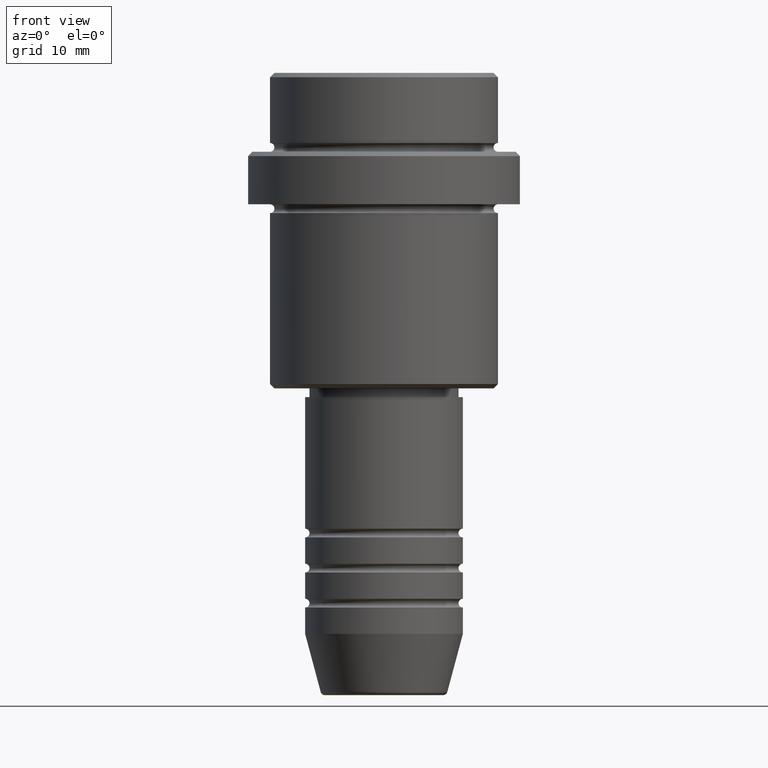
[diagram: clean part render]
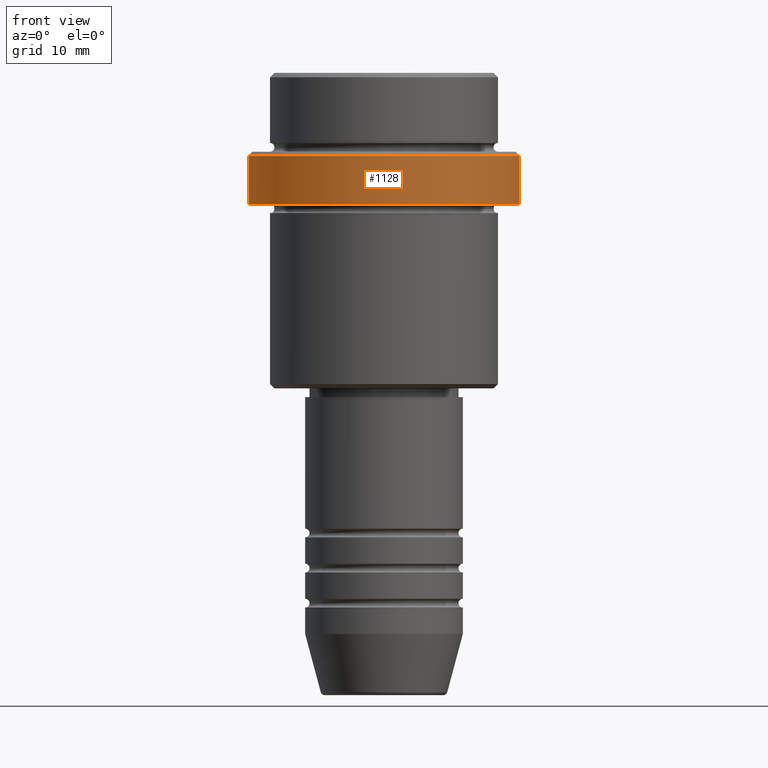
[diagram: same view with one face highlighted and labeled with its STEP entity id]
A machine part, front view. The second image highlights one B-rep face of the part: STEP entity #1128.
In plain terms, the highlighted cylindrical surface (partial cylindrical patch) has radius 15.5 mm, axis along (-0, -0, 1).
Its self-contained STEP definition (entity closure, byte-faithful):
#4 = CARTESIAN_POINT ( 'NONE',  ( 0.000000000000000000, 0.000000000000000000, -9.499999999999991118 ) ) ;
#10 = VERTEX_POINT ( 'NONE', #556 ) ;
#131 = DIRECTION ( 'NONE',  ( -0.000000000000000000, -0.000000000000000000, 1.000000000000000000 ) ) ;
#156 = CARTESIAN_POINT ( 'NONE',  ( 0.000000000000000000, 0.000000000000000000, 0.000000000000000000 ) ) ;
#195 = VECTOR ( 'NONE', #131, 1000.000000000000000 ) ;
#215 = VERTEX_POINT ( 'NONE', #1056 ) ;
#246 = CARTESIAN_POINT ( 'NONE',  ( -15.50000000000000000, 1.898202538678397557E-15, 0.000000000000000000 ) ) ;
#268 = ORIENTED_EDGE ( 'NONE', *, *, #835, .F. ) ;
#302 = LINE ( 'NONE', #594, #857 ) ;
#342 = DIRECTION ( 'NONE',  ( 0.000000000000000000, 0.000000000000000000, -1.000000000000000000 ) ) ;
#352 = VERTEX_POINT ( 'NONE', #619 ) ;
#446 = DIRECTION ( 'NONE',  ( 1.000000000000000000, 0.000000000000000000, 0.000000000000000000 ) ) ;
#463 = EDGE_CURVE ( 'NONE', #1081, #352, #1384, .T. ) ;
#485 = DIRECTION ( 'NONE',  ( 1.000000000000000000, 0.000000000000000000, 0.000000000000000000 ) ) ;
#520 = AXIS2_PLACEMENT_3D ( 'NONE', #4, #342, #446 ) ;
#556 = CARTESIAN_POINT ( 'NONE',  ( -15.50000000000000000, 1.898202538678397557E-15, -15.00000000000000000 ) ) ;
#574 = EDGE_LOOP ( 'NONE', ( #268, #603, #677, #1343 ) ) ;
#579 = DIRECTION ( 'NONE',  ( 1.000000000000000000, 0.000000000000000000, 0.000000000000000000 ) ) ;
#594 = CARTESIAN_POINT ( 'NONE',  ( 15.50000000000000000, 0.000000000000000000, 0.000000000000000000 ) ) ;
#603 = ORIENTED_EDGE ( 'NONE', *, *, #892, .T. ) ;
#611 = CYLINDRICAL_SURFACE ( 'NONE', #1086, 15.50000000000000000 ) ;
#619 = CARTESIAN_POINT ( 'NONE',  ( -15.50000000000000000, 1.898202538678397557E-15, -9.499999999999991118 ) ) ;
#677 = ORIENTED_EDGE ( 'NONE', *, *, #1075, .T. ) ;
#686 = DIRECTION ( 'NONE',  ( -0.000000000000000000, -0.000000000000000000, 1.000000000000000000 ) ) ;
#689 = LINE ( 'NONE', #246, #195 ) ;
#697 = CARTESIAN_POINT ( 'NONE',  ( 0.000000000000000000, 0.000000000000000000, -15.00000000000000000 ) ) ;
#702 = FACE_OUTER_BOUND ( 'NONE', #574, .T. ) ;
#809 = DIRECTION ( 'NONE',  ( -0.000000000000000000, -0.000000000000000000, 1.000000000000000000 ) ) ;
#835 = EDGE_CURVE ( 'NONE', #10, #352, #689, .T. ) ;
#857 = VECTOR ( 'NONE', #809, 1000.000000000000000 ) ;
#892 = EDGE_CURVE ( 'NONE', #10, #215, #1362, .T. ) ;
#950 = AXIS2_PLACEMENT_3D ( 'NONE', #697, #686, #579 ) ;
#1029 = DIRECTION ( 'NONE',  ( -0.000000000000000000, -0.000000000000000000, 1.000000000000000000 ) ) ;
#1056 = CARTESIAN_POINT ( 'NONE',  ( 15.50000000000000000, 0.000000000000000000, -15.00000000000000000 ) ) ;
#1075 = EDGE_CURVE ( 'NONE', #215, #1081, #302, .T. ) ;
#1081 = VERTEX_POINT ( 'NONE', #1139 ) ;
#1086 = AXIS2_PLACEMENT_3D ( 'NONE', #156, #1029, #485 ) ;
#1128 = ADVANCED_FACE ( 'NONE', ( #702 ), #611, .T. ) ;
#1139 = CARTESIAN_POINT ( 'NONE',  ( 15.50000000000000000, 0.000000000000000000, -9.499999999999991118 ) ) ;
#1343 = ORIENTED_EDGE ( 'NONE', *, *, #463, .T. ) ;
#1362 = CIRCLE ( 'NONE', #950, 15.50000000000000000 ) ;
#1384 = CIRCLE ( 'NONE', #520, 15.50000000000000000 ) ;